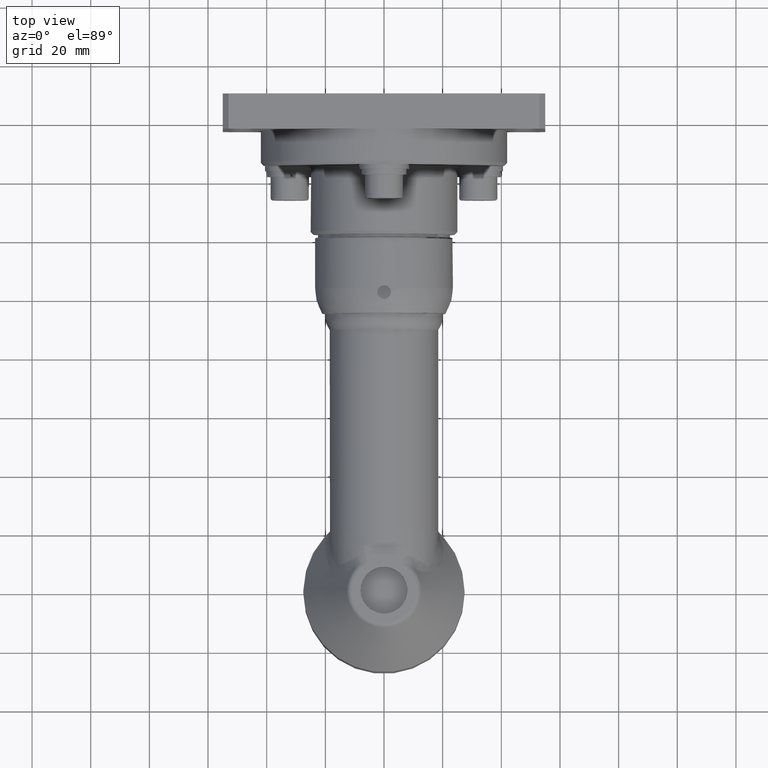
[diagram: clean part render]
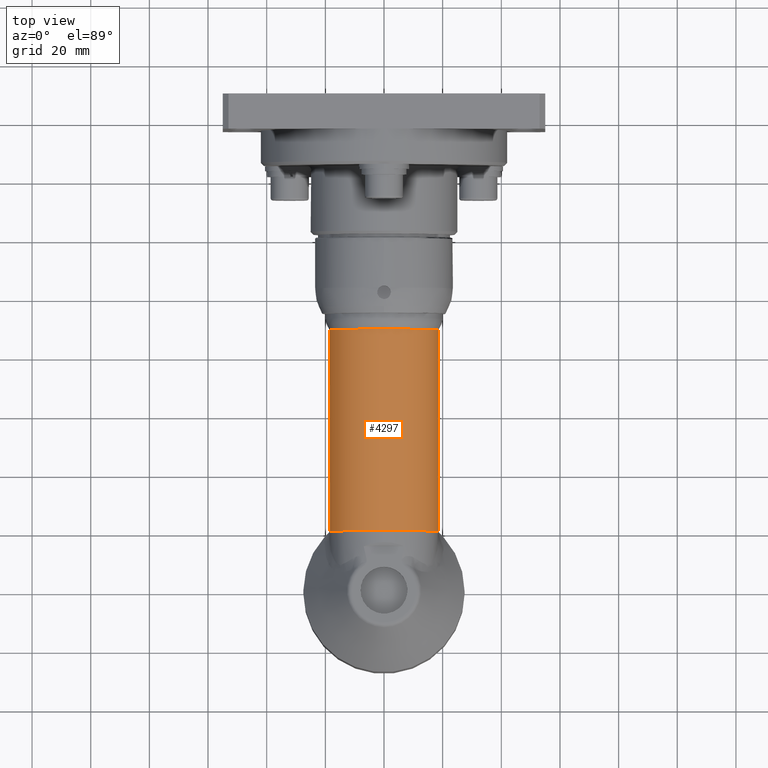
[diagram: same view with one face highlighted and labeled with its STEP entity id]
A machine part, top view. The second image highlights one B-rep face of the part: STEP entity #4297.
In plain terms, the highlighted cylindrical surface (bore or boss wall) has radius 18.5 mm, axis along (0, 1, -0).
Its self-contained STEP definition (entity closure, byte-faithful):
#73=B_SPLINE_CURVE_WITH_KNOTS('',3,(#6824,#6825,#6826,#6827,#6828,#6829,
#6830,#6831,#6832,#6833),.UNSPECIFIED.,.F.,.F.,(4,1,1,1,1,1,1,4),(11.5513759202388,
12.4629020064996,13.3744280927604,14.2859541790213,15.1974802652821,16.109006351543,
17.0205324378038,17.9320585240646),.UNSPECIFIED.);
#76=B_SPLINE_CURVE_WITH_KNOTS('',3,(#6980,#6981,#6982,#6983),
 .UNSPECIFIED.,.F.,.F.,(4,4),(3.05629134205464,3.07910521043144),
 .UNSPECIFIED.);
#77=B_SPLINE_CURVE_WITH_KNOTS('',3,(#6984,#6985,#6986,#6987),
 .UNSPECIFIED.,.F.,.F.,(4,4),(2.77951885924816,3.05629134205464),
 .UNSPECIFIED.);
#78=B_SPLINE_CURVE_WITH_KNOTS('',3,(#6989,#6990,#6991,#6992),
 .UNSPECIFIED.,.F.,.F.,(4,4),(0.0228138684014948,0.299586351392527),
 .UNSPECIFIED.);
#79=B_SPLINE_CURVE_WITH_KNOTS('',3,(#6994,#6995,#6996,#6997),
 .UNSPECIFIED.,.F.,.F.,(4,4),(3.89602473230915E-14,0.0228138684014949),
 .UNSPECIFIED.);
#179=LINE('',#6976,#388);
#388=VECTOR('',#5306,18.5);
#592=CYLINDRICAL_SURFACE('',#4606,18.5);
#742=FACE_OUTER_BOUND('',#997,.T.);
#997=EDGE_LOOP('',(#2889,#2890,#2891,#2892,#2893,#2894,#2895,#2896,#2897,
#2898,#2899));
#1310=CIRCLE('',#4607,18.5);
#1311=CIRCLE('',#4608,18.5);
#1312=CIRCLE('',#4609,18.5);
#1313=CIRCLE('',#4610,18.5);
#1683=VERTEX_POINT('',#6814);
#1684=VERTEX_POINT('',#6823);
#1686=VERTEX_POINT('',#6971);
#1687=VERTEX_POINT('',#6972);
#1688=VERTEX_POINT('',#6975);
#1689=VERTEX_POINT('',#6977);
#1690=VERTEX_POINT('',#6979);
#1691=VERTEX_POINT('',#6988);
#1692=VERTEX_POINT('',#6993);
#2157=EDGE_CURVE('',#1683,#1684,#73,.T.);
#2160=EDGE_CURVE('',#1686,#1687,#1310,.T.);
#2161=EDGE_CURVE('',#1687,#1686,#1311,.T.);
#2162=EDGE_CURVE('',#1687,#1688,#179,.T.);
#2163=EDGE_CURVE('',#1688,#1689,#1312,.T.);
#2164=EDGE_CURVE('',#1690,#1689,#76,.T.);
#2165=EDGE_CURVE('',#1684,#1690,#77,.T.);
#2166=EDGE_CURVE('',#1691,#1683,#78,.T.);
#2167=EDGE_CURVE('',#1692,#1691,#79,.T.);
#2168=EDGE_CURVE('',#1692,#1688,#1313,.T.);
#2889=ORIENTED_EDGE('',*,*,#2160,.F.);
#2890=ORIENTED_EDGE('',*,*,#2161,.F.);
#2891=ORIENTED_EDGE('',*,*,#2162,.T.);
#2892=ORIENTED_EDGE('',*,*,#2163,.T.);
#2893=ORIENTED_EDGE('',*,*,#2164,.F.);
#2894=ORIENTED_EDGE('',*,*,#2165,.F.);
#2895=ORIENTED_EDGE('',*,*,#2157,.F.);
#2896=ORIENTED_EDGE('',*,*,#2166,.F.);
#2897=ORIENTED_EDGE('',*,*,#2167,.F.);
#2898=ORIENTED_EDGE('',*,*,#2168,.T.);
#2899=ORIENTED_EDGE('',*,*,#2162,.F.);
#4297=ADVANCED_FACE('',(#742),#592,.T.);
#4606=AXIS2_PLACEMENT_3D('',#6970,#5300,#5301);
#4607=AXIS2_PLACEMENT_3D('',#6973,#5302,#5303);
#4608=AXIS2_PLACEMENT_3D('',#6974,#5304,#5305);
#4609=AXIS2_PLACEMENT_3D('',#6978,#5307,#5308);
#4610=AXIS2_PLACEMENT_3D('',#6998,#5309,#5310);
#5300=DIRECTION('center_axis',(5.24601003481621E-16,1.,-1.13751565510211E-30));
#5301=DIRECTION('ref_axis',(-1.,6.70462140602243E-16,-2.39031970244941E-15));
#5302=DIRECTION('center_axis',(5.24601003481621E-16,1.,-1.13751565510211E-30));
#5303=DIRECTION('ref_axis',(1.,-5.24601003481621E-16,2.39031970244941E-15));
#5304=DIRECTION('center_axis',(5.24601003481621E-16,1.,-1.13751565510211E-30));
#5305=DIRECTION('ref_axis',(1.,-5.24601003481621E-16,2.39031970244941E-15));
#5306=DIRECTION('',(-5.24601003481621E-16,-1.,1.13751565510211E-30));
#5307=DIRECTION('center_axis',(5.24601003481621E-16,1.,-1.13751565510211E-30));
#5308=DIRECTION('ref_axis',(1.,-5.24601003481621E-16,2.39031970244941E-15));
#5309=DIRECTION('center_axis',(5.24601003481621E-16,1.,-1.13751565510211E-30));
#5310=DIRECTION('ref_axis',(1.,-5.24601003481621E-16,2.39031970244941E-15));
#6814=CARTESIAN_POINT('',(-18.0605894376604,22.5779365410062,-4.00813038264343));
#6823=CARTESIAN_POINT('',(18.0605894376604,22.5779365410062,-4.00813038264333));
#6824=CARTESIAN_POINT('Ctrl Pts',(-18.0605894376604,22.5779365410062,-4.00813038264342));
#6825=CARTESIAN_POINT('Ctrl Pts',(-17.5309002608875,23.2046807798387,-6.39490372532047));
#6826=CARTESIAN_POINT('Ctrl Pts',(-15.578975350547,25.4038122731276,-10.7442158774317));
#6827=CARTESIAN_POINT('Ctrl Pts',(-10.6521884522904,29.0665622206727,-15.6643303594937));
#6828=CARTESIAN_POINT('Ctrl Pts',(-3.87394822454906,31.6017786515679,-18.6199819494201));
#6829=CARTESIAN_POINT('Ctrl Pts',(3.8717706166408,31.598928989445,-18.61842705655));
#6830=CARTESIAN_POINT('Ctrl Pts',(10.6536576030844,29.0662680779249,-15.6625260458957));
#6831=CARTESIAN_POINT('Ctrl Pts',(15.5791798525493,25.403445994017,-10.7443938629416));
#6832=CARTESIAN_POINT('Ctrl Pts',(17.5310000275255,23.2045627329382,-6.39445417799648));
#6833=CARTESIAN_POINT('Ctrl Pts',(18.0605894376604,22.5779365410062,-4.00813038264333));
#6970=CARTESIAN_POINT('Origin',(2.96810643937058E-14,54.7110594093897,-5.98931587436734E-29));
#6971=CARTESIAN_POINT('',(-18.5,89.0751288694036,-4.42209144953142E-14));
#6972=CARTESIAN_POINT('',(18.5,89.0751288694036,4.19553179168914E-14));
#6973=CARTESIAN_POINT('Origin',(4.77084897161412E-14,89.0751288694036,-9.89828257274555E-29));
#6974=CARTESIAN_POINT('Origin',(4.77084897161412E-14,89.0751288694036,-9.89828257274555E-29));
#6975=CARTESIAN_POINT('',(18.5,20.3469899493758,4.19553179168915E-14));
#6976=CARTESIAN_POINT('',(18.5,54.7110594093897,4.19553179168914E-14));
#6977=CARTESIAN_POINT('',(18.3271949084376,20.3469899493775,-2.52268245884011));
#6978=CARTESIAN_POINT('Origin',(1.16536390712704E-14,20.3469899493758,-2.08034917598912E-29));
#6979=CARTESIAN_POINT('',(18.3111866900523,20.5170768386253,-2.63636909442751));
#6980=CARTESIAN_POINT('Ctrl Pts',(18.3111870474103,20.5170766804146,-2.63636938265735));
#6981=CARTESIAN_POINT('Ctrl Pts',(18.3166407148692,20.4603836540665,-2.5984886469663));
#6982=CARTESIAN_POINT('Ctrl Pts',(18.3219766453613,20.4036878401999,-2.56059294739469));
#6983=CARTESIAN_POINT('Ctrl Pts',(18.3271949084376,20.3469899493792,-2.52268245884011));
#6984=CARTESIAN_POINT('Ctrl Pts',(18.0605895504173,22.5779364994281,-4.00813047034848));
#6985=CARTESIAN_POINT('Ctrl Pts',(18.1615333336451,21.8922393246279,-3.55328734633298));
#6986=CARTESIAN_POINT('Ctrl Pts',(18.2450244371037,21.2048631356099,-3.09592955432931));
#6987=CARTESIAN_POINT('Ctrl Pts',(18.3111870474103,20.5170766804146,-2.63636938265735));
#6988=CARTESIAN_POINT('',(-18.3111866900523,20.5170768386253,-2.63636909442753));
#6989=CARTESIAN_POINT('Ctrl Pts',(-18.3111870480611,20.5170766801568,-2.63636938313678));
#6990=CARTESIAN_POINT('Ctrl Pts',(-18.2450244428996,21.2048631323954,-3.09592955789533));
#6991=CARTESIAN_POINT('Ctrl Pts',(-18.1615333721824,21.8922393002893,-3.55328736777306));
#6992=CARTESIAN_POINT('Ctrl Pts',(-18.0605895552355,22.5779364976614,-4.0081304740813));
#6993=CARTESIAN_POINT('',(-18.3271949084377,20.3469899493766,-2.52268245883904));
#6994=CARTESIAN_POINT('Ctrl Pts',(-18.3271949084377,20.3469899493772,-2.52268245883886));
#6995=CARTESIAN_POINT('Ctrl Pts',(-18.3219766453558,20.4036878402592,-2.56059294743441));
#6996=CARTESIAN_POINT('Ctrl Pts',(-18.3166407150981,20.4603836540289,-2.59848864717564));
#6997=CARTESIAN_POINT('Ctrl Pts',(-18.3111870480611,20.5170766801568,-2.63636938313678));
#6998=CARTESIAN_POINT('Origin',(1.16536390712704E-14,20.3469899493758,-2.08034917598912E-29));